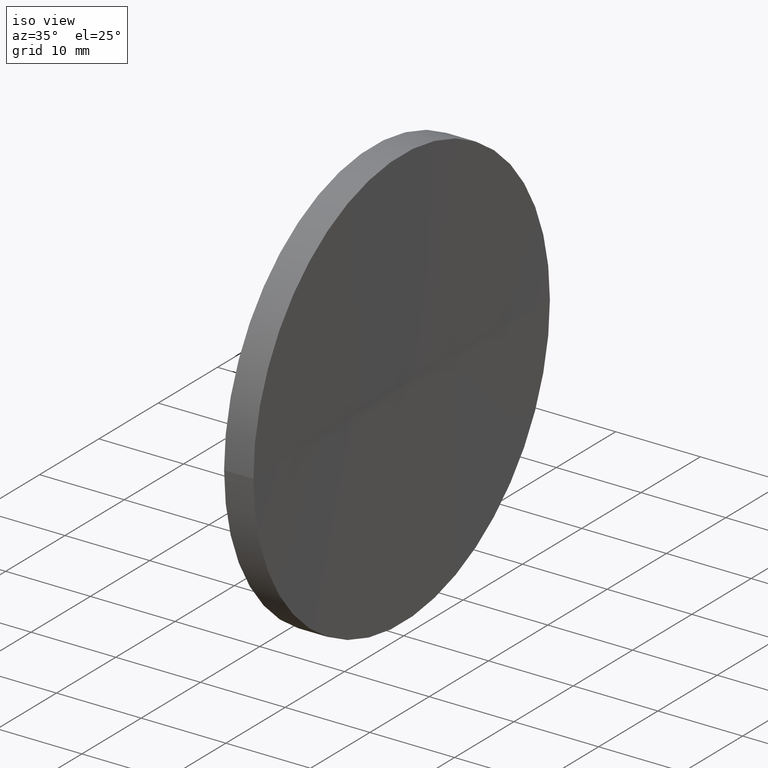
[diagram: clean part render]
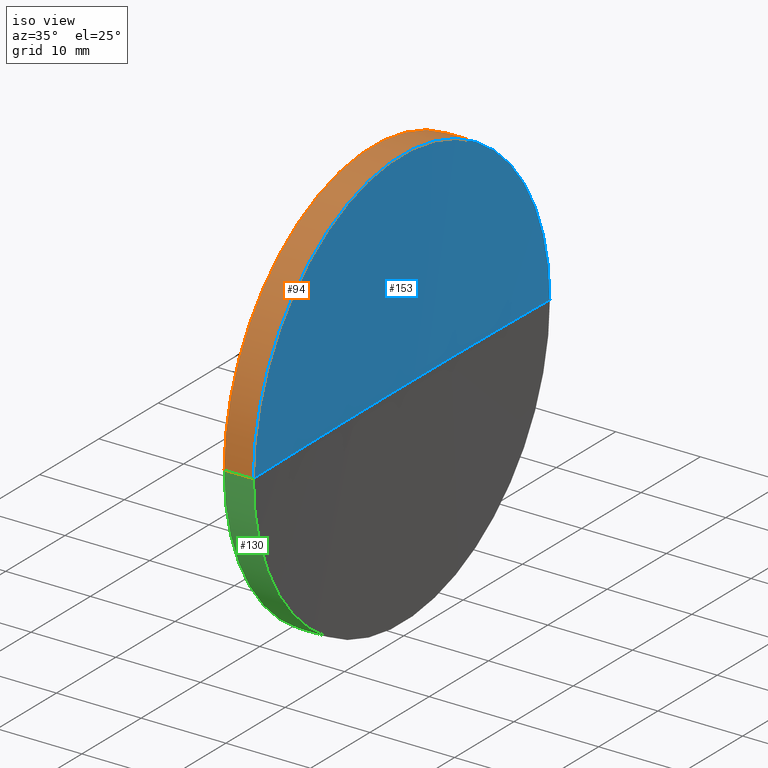
[diagram: same view with three faces highlighted in distinct colors, each labeled with its STEP entity id]
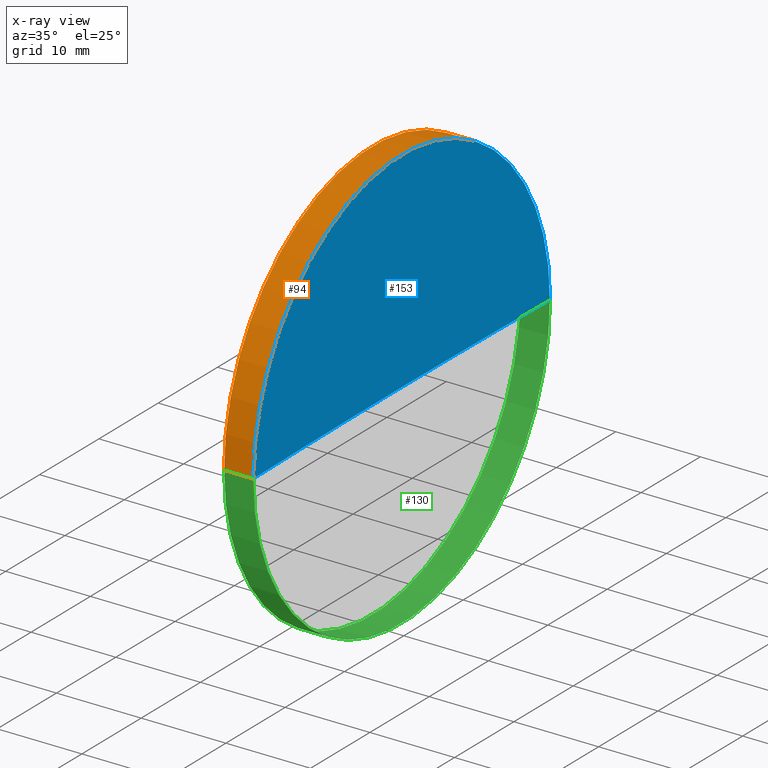
[diagram: x-ray of the same camera — body ghosted, the three highlighted faces saturated]
A machine part, iso view with three faces highlighted in distinct colors.
The next image is the same camera in x-ray (body ghosted, the three faces saturated) — at least one of them is partly hidden behind the body in this view.
Their STEP definitions:

[orange] entity #94 — the highlighted cylindrical surface (partial cylindrical patch) has radius 25 mm, axis along (-1, -0, -0).
#8 = CARTESIAN_POINT ( 'NONE',  ( 231.8889825959263400, 130.4336809418806500, 0.0000000000000000000 ) ) ;
#10 = DIRECTION ( 'NONE',  ( -1.000000000000000000, -6.937607244762875000E-016, -0.0000000000000000000 ) ) ;
#13 = AXIS2_PLACEMENT_3D ( 'NONE', #8, #28, #136 ) ;
#24 = ORIENTED_EDGE ( 'NONE', *, *, #97, .T. ) ;
#28 = DIRECTION ( 'NONE',  ( -1.000000000000000000, -6.937607244762875000E-016, -0.0000000000000000000 ) ) ;
#33 = EDGE_LOOP ( 'NONE', ( #24, #64, #192, #179 ) ) ;
#47 = FACE_OUTER_BOUND ( 'NONE', #33, .T. ) ;
#50 = AXIS2_PLACEMENT_3D ( 'NONE', #189, #95, #74 ) ;
#53 = DIRECTION ( 'NONE',  ( -1.000000000000000000, -6.937607244762875000E-016, -0.0000000000000000000 ) ) ;
#58 = CARTESIAN_POINT ( 'NONE',  ( 231.8889825959263600, 105.4336809418806400, 0.0000000000000000000 ) ) ;
#62 = CIRCLE ( 'NONE', #83, 24.99999999999992500 ) ;
#64 = ORIENTED_EDGE ( 'NONE', *, *, #114, .T. ) ;
#68 = CARTESIAN_POINT ( 'NONE',  ( 245.9873140786527900, 130.4336809418806500, 0.0000000000000000000 ) ) ;
#73 = CYLINDRICAL_SURFACE ( 'NONE', #13, 25.00000000000000700 ) ;
#74 = DIRECTION ( 'NONE',  ( 1.110223024625153800E-015, -1.000000000000000000, 0.0000000000000000000 ) ) ;
#76 = DIRECTION ( 'NONE',  ( -1.000000000000000000, -6.937607244762875000E-016, -0.0000000000000000000 ) ) ;
#80 = VERTEX_POINT ( 'NONE', #133 ) ;
#83 = AXIS2_PLACEMENT_3D ( 'NONE', #68, #53, #145 ) ;
#91 = CARTESIAN_POINT ( 'NONE',  ( 245.9873140786527600, 155.4336809418806000, 3.061616997868379500E-015 ) ) ;
#94 = ADVANCED_FACE ( 'NONE', ( #47 ), #73, .T. ) ;
#95 = DIRECTION ( 'NONE',  ( -1.000000000000000000, -6.937607244762875000E-016, -0.0000000000000000000 ) ) ;
#97 = EDGE_CURVE ( 'NONE', #149, #186, #101, .T. ) ;
#101 = CIRCLE ( 'NONE', #50, 25.00000000000006400 ) ;
#107 = VECTOR ( 'NONE', #10, 1000.000000000000000 ) ;
#114 = EDGE_CURVE ( 'NONE', #186, #183, #129, .T. ) ;
#123 = EDGE_CURVE ( 'NONE', #149, #80, #161, .T. ) ;
#124 = CARTESIAN_POINT ( 'NONE',  ( 249.4425760513079200, 155.4336809418852900, 0.0000000000000000000 ) ) ;
#129 = LINE ( 'NONE', #131, #107 ) ;
#131 = CARTESIAN_POINT ( 'NONE',  ( 231.8889825959263100, 155.4336809418806500, 3.061616997868383800E-015 ) ) ;
#133 = CARTESIAN_POINT ( 'NONE',  ( 245.9873140786528200, 105.4336809418807200, 0.0000000000000000000 ) ) ;
#136 = DIRECTION ( 'NONE',  ( 1.110223024625156100E-015, -1.000000000000000000, 0.0000000000000000000 ) ) ;
#145 = DIRECTION ( 'NONE',  ( 1.110223024625159900E-015, -1.000000000000000000, 0.0000000000000000000 ) ) ;
#149 = VERTEX_POINT ( 'NONE', #169 ) ;
#161 = LINE ( 'NONE', #58, #166 ) ;
#166 = VECTOR ( 'NONE', #76, 1000.000000000000000 ) ;
#169 = CARTESIAN_POINT ( 'NONE',  ( 249.4425760513079500, 105.4336809418699500, -3.061616997868951400E-015 ) ) ;
#176 = EDGE_CURVE ( 'NONE', #80, #183, #62, .T. ) ;
#179 = ORIENTED_EDGE ( 'NONE', *, *, #123, .F. ) ;
#183 = VERTEX_POINT ( 'NONE', #91 ) ;
#186 = VERTEX_POINT ( 'NONE', #124 ) ;
#189 = CARTESIAN_POINT ( 'NONE',  ( 249.4425760513077300, 130.4336809418806500, 0.0000000000000000000 ) ) ;
#192 = ORIENTED_EDGE ( 'NONE', *, *, #176, .F. ) ;

[blue] entity #153 — the highlighted spherical surface has radius 1200 mm.
#15 = DIRECTION ( 'NONE',  ( 1.000000000000000000, 0.0000000000000000000, 0.0000000000000000000 ) ) ;
#18 = ORIENTED_EDGE ( 'NONE', *, *, #54, .T. ) ;
#31 = ORIENTED_EDGE ( 'NONE', *, *, #125, .F. ) ;
#35 = AXIS2_PLACEMENT_3D ( 'NONE', #98, #46, #154 ) ;
#36 = DIRECTION ( 'NONE',  ( -7.401486830834377300E-016, 1.000000000000000000, 0.0000000000000000000 ) ) ;
#38 = CARTESIAN_POINT ( 'NONE',  ( 249.1821311214903600, 130.4336809418746600, 0.0000000000000000000 ) ) ;
#46 = DIRECTION ( 'NONE',  ( -8.496118506040342700E-032, 1.224646799147353200E-016, -1.000000000000000000 ) ) ;
#50 = AXIS2_PLACEMENT_3D ( 'NONE', #189, #95, #74 ) ;
#54 = EDGE_CURVE ( 'NONE', #149, #137, #159, .T. ) ;
#74 = DIRECTION ( 'NONE',  ( 1.110223024625153800E-015, -1.000000000000000000, 0.0000000000000000000 ) ) ;
#92 = FACE_OUTER_BOUND ( 'NONE', #150, .T. ) ;
#95 = DIRECTION ( 'NONE',  ( -1.000000000000000000, -6.937607244762875000E-016, -0.0000000000000000000 ) ) ;
#97 = EDGE_CURVE ( 'NONE', #149, #186, #101, .T. ) ;
#98 = CARTESIAN_POINT ( 'NONE',  ( 1449.182131121490300, 130.4336809418753900, 0.0000000000000000000 ) ) ;
#101 = CIRCLE ( 'NONE', #50, 25.00000000000006400 ) ;
#103 = CARTESIAN_POINT ( 'NONE',  ( 1449.182131121490300, 130.4336809418753900, 0.0000000000000000000 ) ) ;
#124 = CARTESIAN_POINT ( 'NONE',  ( 249.4425760513079200, 155.4336809418852900, 0.0000000000000000000 ) ) ;
#125 = EDGE_CURVE ( 'NONE', #186, #137, #178, .T. ) ;
#127 = CARTESIAN_POINT ( 'NONE',  ( 1449.182131121490300, 130.4336809418753900, 0.0000000000000000000 ) ) ;
#137 = VERTEX_POINT ( 'NONE', #38 ) ;
#141 = SPHERICAL_SURFACE ( 'NONE', #165, 1200.000000000000000 ) ;
#149 = VERTEX_POINT ( 'NONE', #169 ) ;
#150 = EDGE_LOOP ( 'NONE', ( #182, #18, #31 ) ) ;
#153 = ADVANCED_FACE ( 'NONE', ( #92 ), #141, .F. ) ;
#154 = DIRECTION ( 'NONE',  ( 0.0000000000000000000, 1.000000000000000000, 1.224646799147353200E-016 ) ) ;
#159 = CIRCLE ( 'NONE', #35, 1200.000000000000000 ) ;
#160 = DIRECTION ( 'NONE',  ( 0.0000000000000000000, -0.0000000000000000000, 1.000000000000000000 ) ) ;
#164 = DIRECTION ( 'NONE',  ( 0.0000000000000000000, 0.0000000000000000000, -1.000000000000000000 ) ) ;
#165 = AXIS2_PLACEMENT_3D ( 'NONE', #103, #164, #36 ) ;
#169 = CARTESIAN_POINT ( 'NONE',  ( 249.4425760513079500, 105.4336809418699500, -3.061616997868951400E-015 ) ) ;
#175 = AXIS2_PLACEMENT_3D ( 'NONE', #127, #160, #15 ) ;
#178 = CIRCLE ( 'NONE', #175, 1200.000000000000000 ) ;
#182 = ORIENTED_EDGE ( 'NONE', *, *, #97, .F. ) ;
#186 = VERTEX_POINT ( 'NONE', #124 ) ;
#189 = CARTESIAN_POINT ( 'NONE',  ( 249.4425760513077300, 130.4336809418806500, 0.0000000000000000000 ) ) ;

[green] entity #130 — the highlighted cylindrical surface (partial cylindrical patch) has radius 25 mm, axis along (-1, -0, -0).
#1 = DIRECTION ( 'NONE',  ( -1.000000000000000000, -6.937607244762875000E-016, -0.0000000000000000000 ) ) ;
#10 = DIRECTION ( 'NONE',  ( -1.000000000000000000, -6.937607244762875000E-016, -0.0000000000000000000 ) ) ;
#20 = ORIENTED_EDGE ( 'NONE', *, *, #87, .F. ) ;
#30 = CARTESIAN_POINT ( 'NONE',  ( 231.8889825959263400, 130.4336809418806500, 0.0000000000000000000 ) ) ;
#42 = ORIENTED_EDGE ( 'NONE', *, *, #114, .F. ) ;
#49 = DIRECTION ( 'NONE',  ( 1.110223024625153800E-015, -1.000000000000000000, 0.0000000000000000000 ) ) ;
#55 = EDGE_LOOP ( 'NONE', ( #42, #162, #173, #20 ) ) ;
#58 = CARTESIAN_POINT ( 'NONE',  ( 231.8889825959263600, 105.4336809418806400, 0.0000000000000000000 ) ) ;
#76 = DIRECTION ( 'NONE',  ( -1.000000000000000000, -6.937607244762875000E-016, -0.0000000000000000000 ) ) ;
#80 = VERTEX_POINT ( 'NONE', #133 ) ;
#82 = EDGE_CURVE ( 'NONE', #186, #149, #148, .T. ) ;
#87 = EDGE_CURVE ( 'NONE', #183, #80, #190, .T. ) ;
#91 = CARTESIAN_POINT ( 'NONE',  ( 245.9873140786527600, 155.4336809418806000, 3.061616997868379500E-015 ) ) ;
#100 = AXIS2_PLACEMENT_3D ( 'NONE', #115, #191, #168 ) ;
#107 = VECTOR ( 'NONE', #10, 1000.000000000000000 ) ;
#113 = DIRECTION ( 'NONE',  ( -1.000000000000000000, -6.937607244762875000E-016, -0.0000000000000000000 ) ) ;
#114 = EDGE_CURVE ( 'NONE', #186, #183, #129, .T. ) ;
#115 = CARTESIAN_POINT ( 'NONE',  ( 245.9873140786527900, 130.4336809418806500, 0.0000000000000000000 ) ) ;
#122 = CYLINDRICAL_SURFACE ( 'NONE', #143, 25.00000000000000700 ) ;
#123 = EDGE_CURVE ( 'NONE', #149, #80, #161, .T. ) ;
#124 = CARTESIAN_POINT ( 'NONE',  ( 249.4425760513079200, 155.4336809418852900, 0.0000000000000000000 ) ) ;
#128 = AXIS2_PLACEMENT_3D ( 'NONE', #167, #113, #49 ) ;
#129 = LINE ( 'NONE', #131, #107 ) ;
#130 = ADVANCED_FACE ( 'NONE', ( #172 ), #122, .T. ) ;
#131 = CARTESIAN_POINT ( 'NONE',  ( 231.8889825959263100, 155.4336809418806500, 3.061616997868383800E-015 ) ) ;
#133 = CARTESIAN_POINT ( 'NONE',  ( 245.9873140786528200, 105.4336809418807200, 0.0000000000000000000 ) ) ;
#143 = AXIS2_PLACEMENT_3D ( 'NONE', #30, #1, #171 ) ;
#148 = CIRCLE ( 'NONE', #128, 25.00000000000006400 ) ;
#149 = VERTEX_POINT ( 'NONE', #169 ) ;
#161 = LINE ( 'NONE', #58, #166 ) ;
#162 = ORIENTED_EDGE ( 'NONE', *, *, #82, .T. ) ;
#166 = VECTOR ( 'NONE', #76, 1000.000000000000000 ) ;
#167 = CARTESIAN_POINT ( 'NONE',  ( 249.4425760513077300, 130.4336809418806500, 0.0000000000000000000 ) ) ;
#168 = DIRECTION ( 'NONE',  ( 1.110223024625159900E-015, -1.000000000000000000, 0.0000000000000000000 ) ) ;
#169 = CARTESIAN_POINT ( 'NONE',  ( 249.4425760513079500, 105.4336809418699500, -3.061616997868951400E-015 ) ) ;
#171 = DIRECTION ( 'NONE',  ( 1.110223024625156100E-015, -1.000000000000000000, 0.0000000000000000000 ) ) ;
#172 = FACE_OUTER_BOUND ( 'NONE', #55, .T. ) ;
#173 = ORIENTED_EDGE ( 'NONE', *, *, #123, .T. ) ;
#183 = VERTEX_POINT ( 'NONE', #91 ) ;
#186 = VERTEX_POINT ( 'NONE', #124 ) ;
#190 = CIRCLE ( 'NONE', #100, 24.99999999999992500 ) ;
#191 = DIRECTION ( 'NONE',  ( -1.000000000000000000, -6.937607244762875000E-016, -0.0000000000000000000 ) ) ;